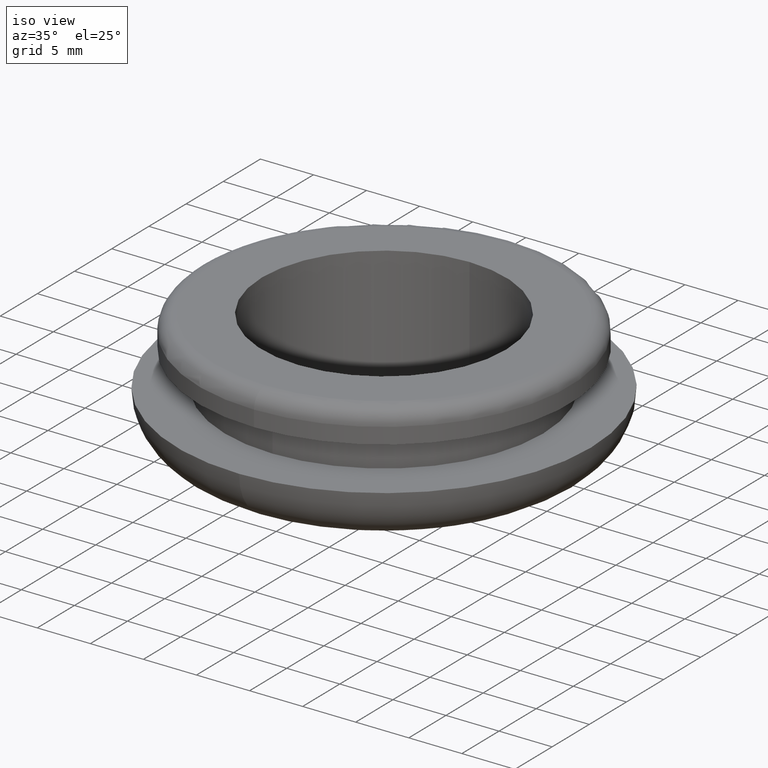
[diagram: clean part render]
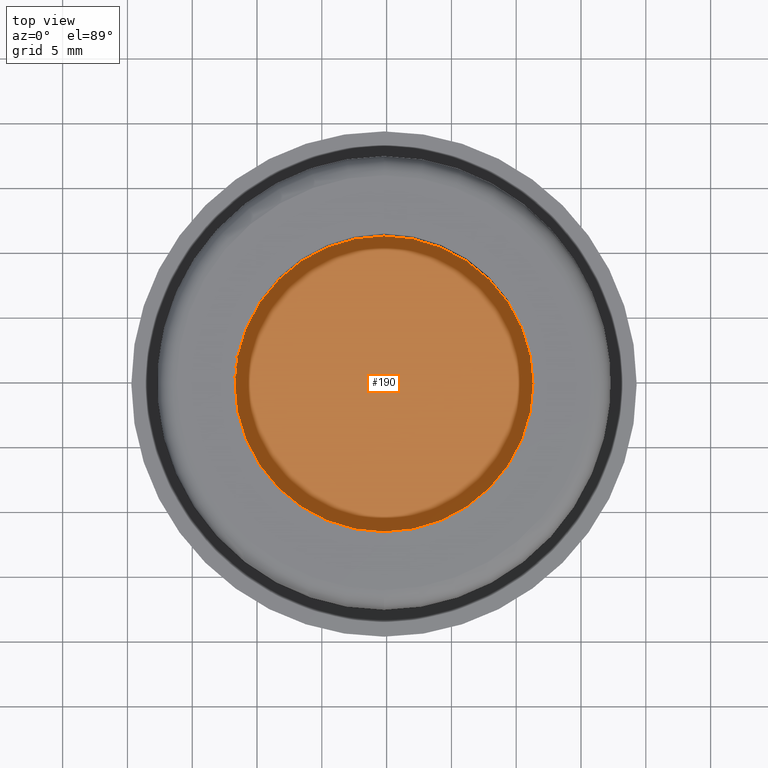
[diagram: tour spotlight — one face highlighted and labeled with its STEP entity id]
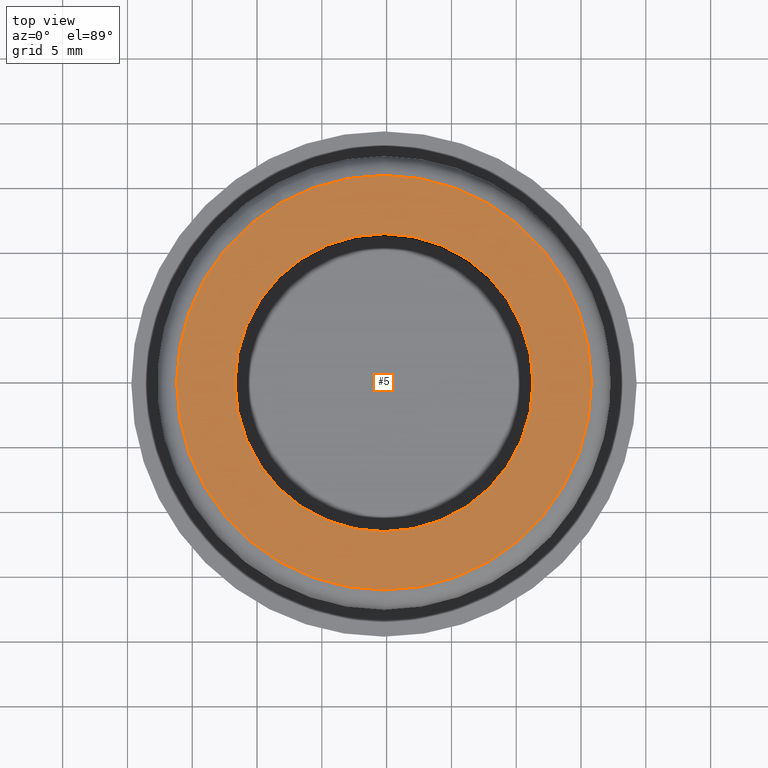
[diagram: tour spotlight — one face highlighted and labeled with its STEP entity id]
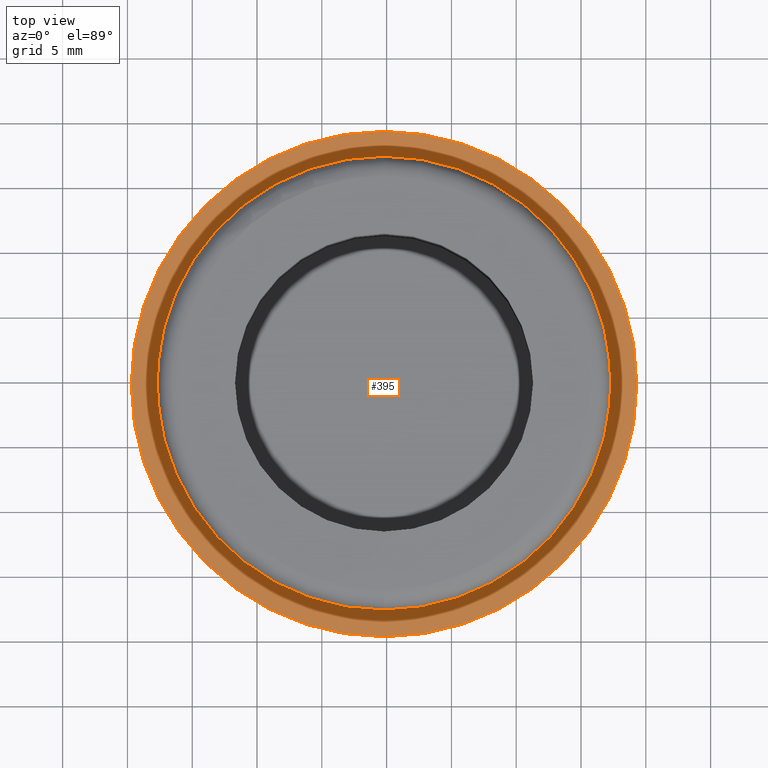
[diagram: tour spotlight — one face highlighted and labeled with its STEP entity id]
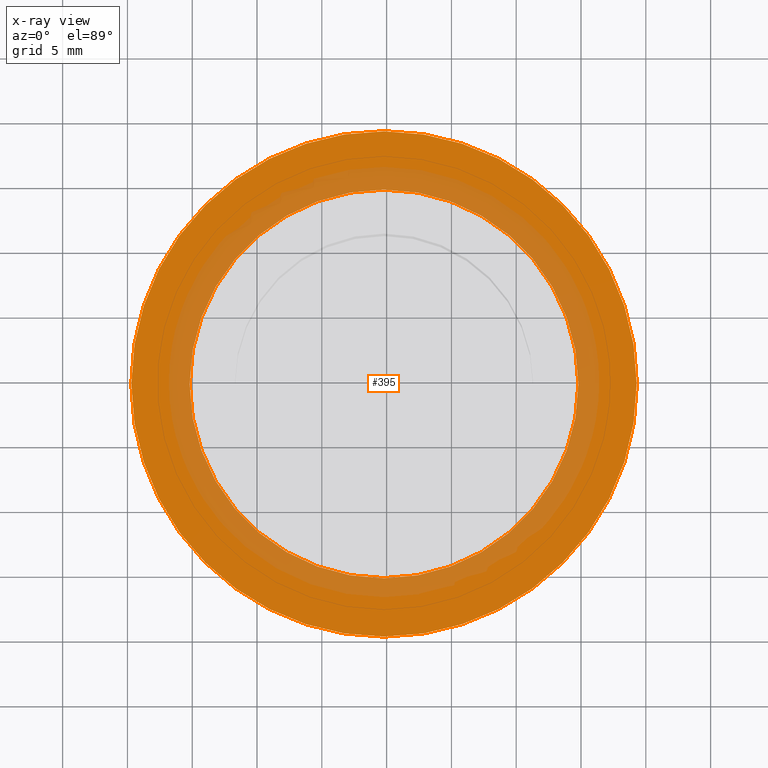
[diagram: x-ray of the same camera — body ghosted, this tour face saturated]
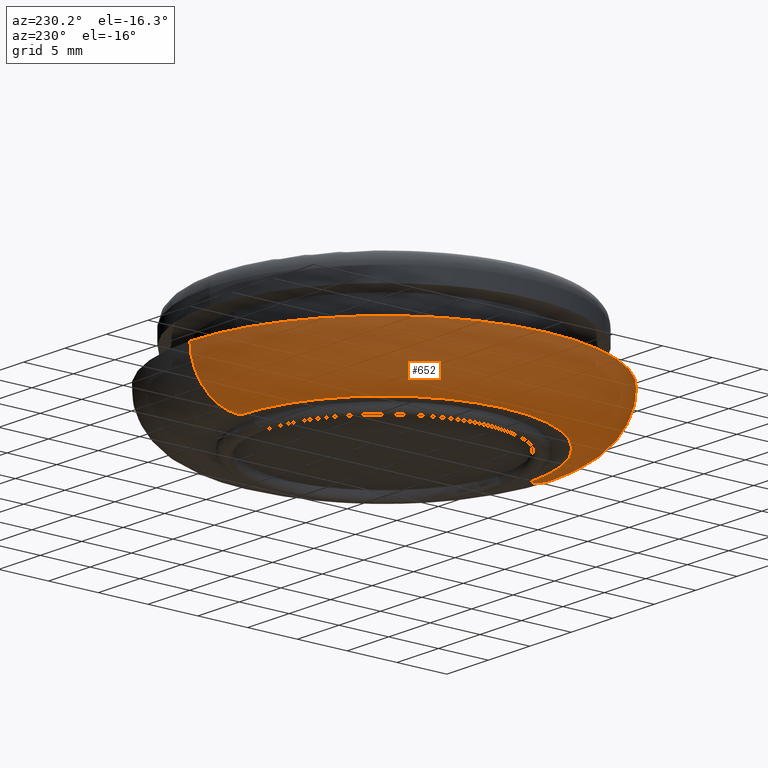
[diagram: tour spotlight — one face highlighted and labeled with its STEP entity id]
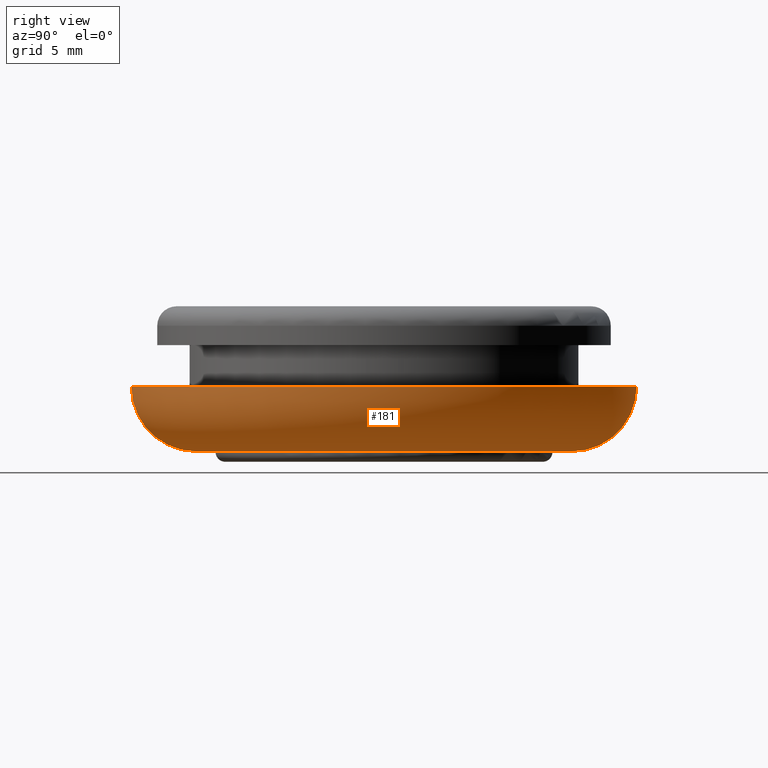
[diagram: tour spotlight — one face highlighted and labeled with its STEP entity id]
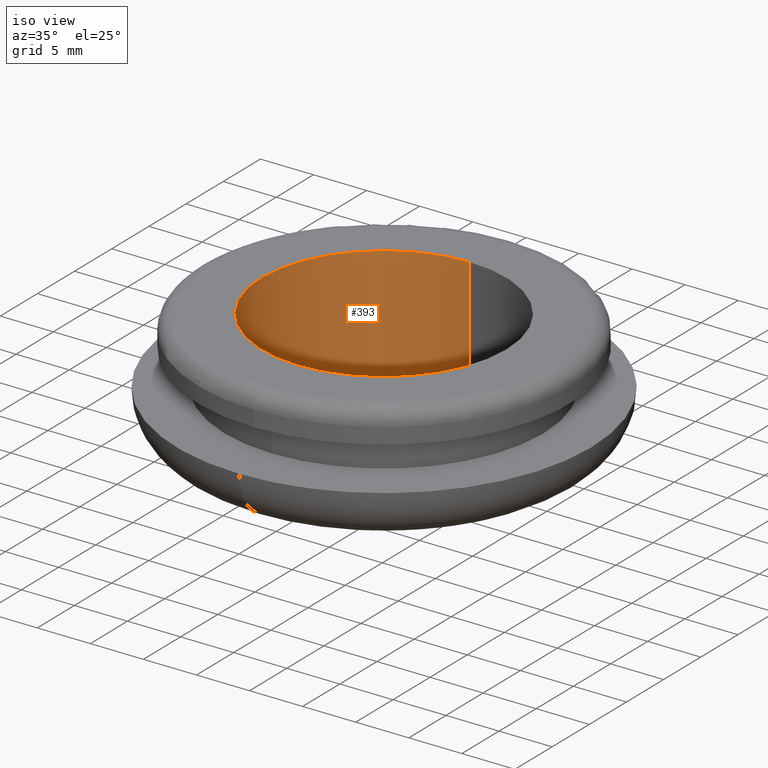
[diagram: tour spotlight — one face highlighted and labeled with its STEP entity id]
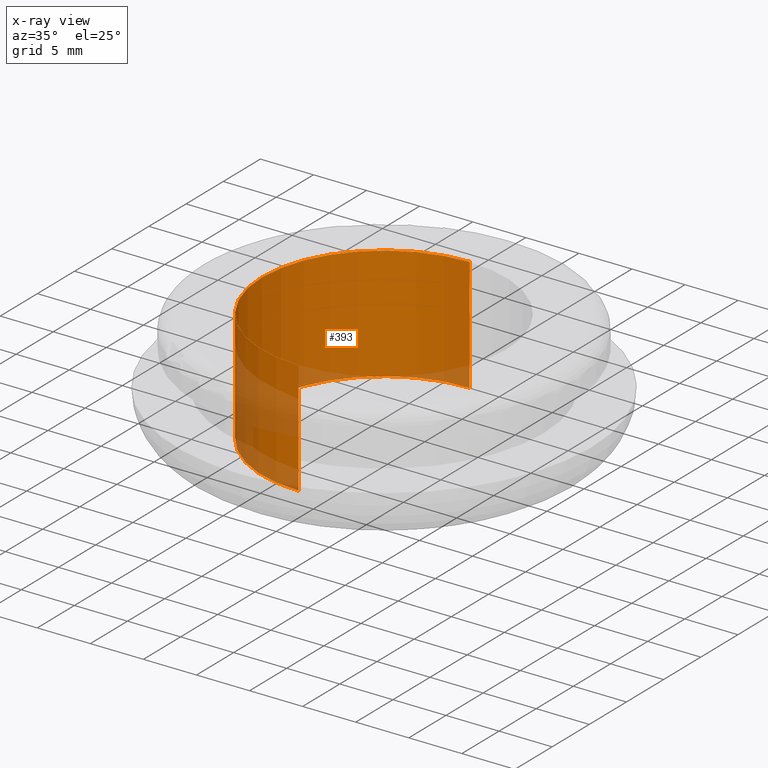
[diagram: x-ray of the same camera — body ghosted, this tour face saturated]
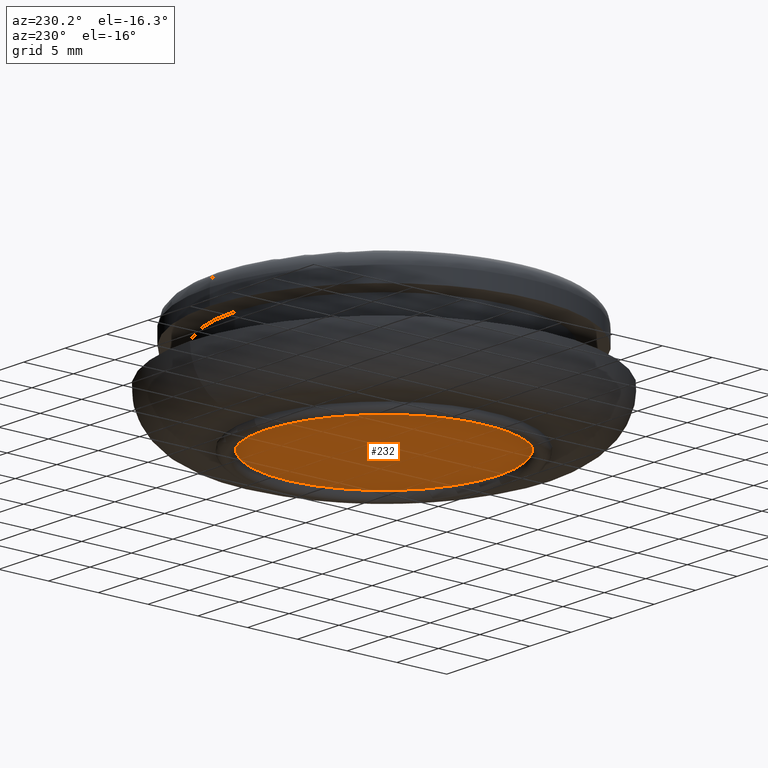
[diagram: tour spotlight — one face highlighted and labeled with its STEP entity id]
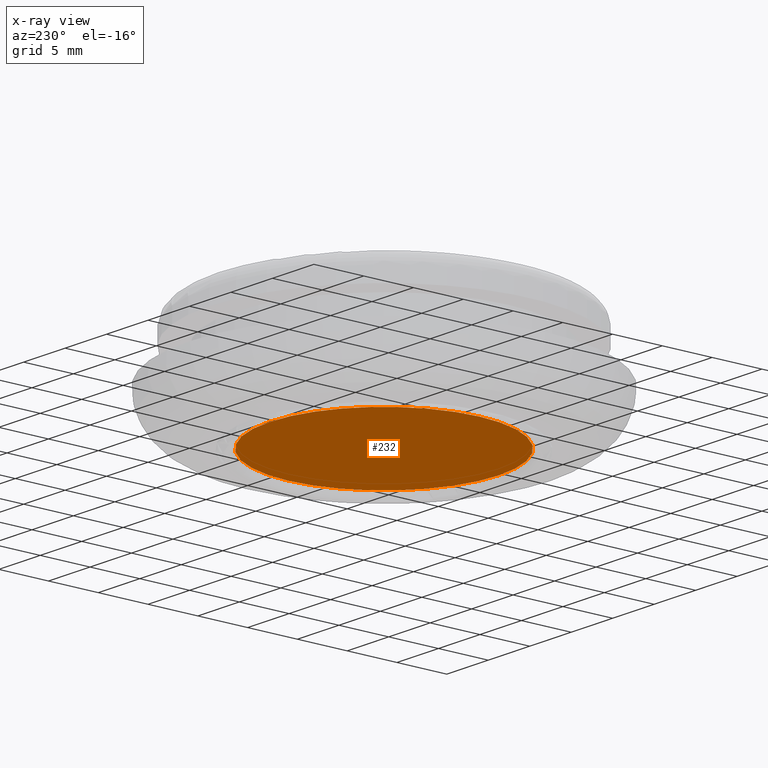
[diagram: x-ray of the same camera — body ghosted, this tour face saturated]
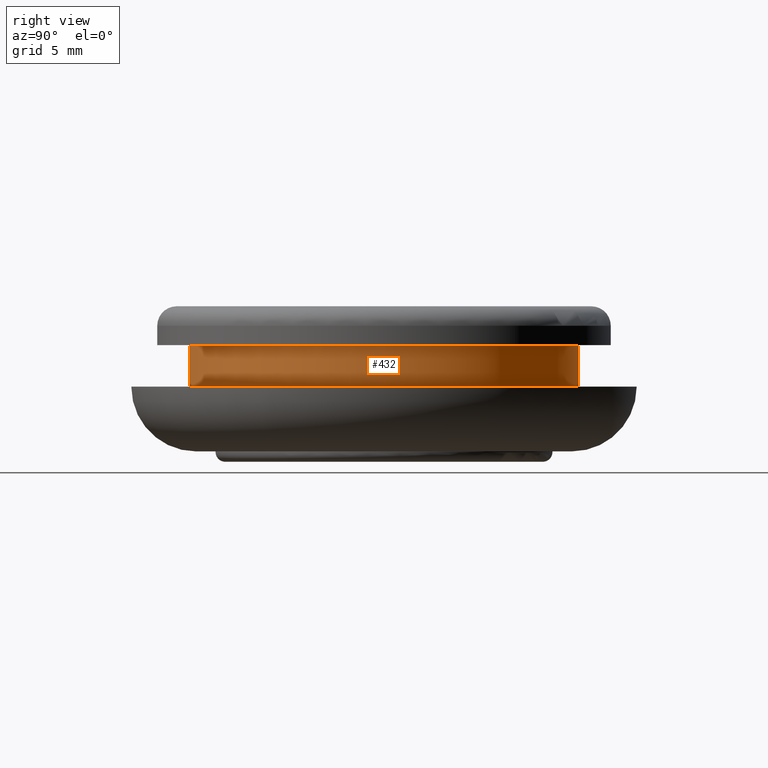
[diagram: tour spotlight — one face highlighted and labeled with its STEP entity id]
A machine part: a face-by-face anatomy tour. The part has 22 B-rep faces; the first image is the clean iso view, then the 8 largest visible faces are spotlighted one at a time (largest first), each with its STEP entity span.

Face 1 — top view, entity #190. In plain terms, the highlighted planar face has unit normal (0, -0, 1).
Definition (entity closure, byte-faithful):
#50 = PLANE ( 'NONE',  #197 ) ;
#72 = EDGE_CURVE ( 'NONE', #127, #500, #435, .T. ) ;
#83 = CARTESIAN_POINT ( 'NONE',  ( 0.0000000000000000000, 10.69999999999999900, -11.50000000000000000 ) ) ;
#85 = DIRECTION ( 'NONE',  ( 0.0000000000000000000, 0.0000000000000000000, -1.000000000000000000 ) ) ;
#95 = DIRECTION ( 'NONE',  ( 0.0000000000000000000, -1.000000000000000000, 0.0000000000000000000 ) ) ;
#104 = DIRECTION ( 'NONE',  ( 0.0000000000000000000, 0.0000000000000000000, -1.000000000000000000 ) ) ;
#108 = CARTESIAN_POINT ( 'NONE',  ( 1.408343819019456200E-015, 10.69999999999999900, 11.50000000000000000 ) ) ;
#127 = VERTEX_POINT ( 'NONE', #108 ) ;
#149 = CARTESIAN_POINT ( 'NONE',  ( 0.0000000000000000000, 10.69999999999999900, 0.0000000000000000000 ) ) ;
#190 = ADVANCED_FACE ( 'NONE', ( #358 ), #50, .T. ) ;
#197 = AXIS2_PLACEMENT_3D ( 'NONE', #372, #95, #560 ) ;
#204 = DIRECTION ( 'NONE',  ( 0.0000000000000000000, -1.000000000000000000, 0.0000000000000000000 ) ) ;
#220 = ORIENTED_EDGE ( 'NONE', *, *, #633, .T. ) ;
#256 = ORIENTED_EDGE ( 'NONE', *, *, #72, .T. ) ;
#303 = CIRCLE ( 'NONE', #538, 11.50000000000000000 ) ;
#347 = AXIS2_PLACEMENT_3D ( 'NONE', #477, #539, #85 ) ;
#358 = FACE_OUTER_BOUND ( 'NONE', #592, .T. ) ;
#372 = CARTESIAN_POINT ( 'NONE',  ( 0.0000000000000000000, 10.69999999999999900, 0.0000000000000000000 ) ) ;
#435 = CIRCLE ( 'NONE', #347, 11.50000000000000000 ) ;
#477 = CARTESIAN_POINT ( 'NONE',  ( 0.0000000000000000000, 10.69999999999999900, 0.0000000000000000000 ) ) ;
#500 = VERTEX_POINT ( 'NONE', #83 ) ;
#538 = AXIS2_PLACEMENT_3D ( 'NONE', #149, #204, #104 ) ;
#539 = DIRECTION ( 'NONE',  ( 0.0000000000000000000, -1.000000000000000000, 0.0000000000000000000 ) ) ;
#560 = DIRECTION ( 'NONE',  ( 0.0000000000000000000, -0.0000000000000000000, -1.000000000000000000 ) ) ;
#592 = EDGE_LOOP ( 'NONE', ( #220, #256 ) ) ;
#633 = EDGE_CURVE ( 'NONE', #500, #127, #303, .T. ) ;

Face 2 — top view, entity #5. In plain terms, the highlighted planar face has unit normal (0, -0, 1).
Definition (entity closure, byte-faithful):
#5 = ADVANCED_FACE ( 'NONE', ( #280, #88 ), #552, .T. ) ;
#19 = EDGE_CURVE ( 'NONE', #353, #331, #603, .T. ) ;
#46 = EDGE_CURVE ( 'NONE', #596, #531, #572, .T. ) ;
#79 = AXIS2_PLACEMENT_3D ( 'NONE', #194, #166, #292 ) ;
#88 = FACE_BOUND ( 'NONE', #265, .T. ) ;
#113 = ORIENTED_EDGE ( 'NONE', *, *, #46, .F. ) ;
#132 = CARTESIAN_POINT ( 'NONE',  ( 1.408343819019456200E-015, -1.734723475976807100E-015, 11.50000000000000000 ) ) ;
#154 = AXIS2_PLACEMENT_3D ( 'NONE', #561, #621, #555 ) ;
#166 = DIRECTION ( 'NONE',  ( 0.0000000000000000000, -1.000000000000000000, 0.0000000000000000000 ) ) ;
#167 = ORIENTED_EDGE ( 'NONE', *, *, #19, .T. ) ;
#173 = CARTESIAN_POINT ( 'NONE',  ( 2.051283388571816100E-015, -3.469446951953614200E-015, 15.99999999999998900 ) ) ;
#180 = ORIENTED_EDGE ( 'NONE', *, *, #330, .F. ) ;
#194 = CARTESIAN_POINT ( 'NONE',  ( 0.0000000000000000000, -1.734723475976807100E-015, 0.0000000000000000000 ) ) ;
#209 = AXIS2_PLACEMENT_3D ( 'NONE', #583, #236, #362 ) ;
#225 = CARTESIAN_POINT ( 'NONE',  ( 11.50000000000000000, -2.573917133304267300E-015, 0.0000000000000000000 ) ) ;
#236 = DIRECTION ( 'NONE',  ( 0.0000000000000000000, -1.000000000000000000, 0.0000000000000000000 ) ) ;
#247 = CIRCLE ( 'NONE', #154, 15.99999999999998900 ) ;
#265 = EDGE_LOOP ( 'NONE', ( #113, #180 ) ) ;
#280 = FACE_OUTER_BOUND ( 'NONE', #547, .T. ) ;
#292 = DIRECTION ( 'NONE',  ( 0.0000000000000000000, 0.0000000000000000000, -1.000000000000000000 ) ) ;
#330 = EDGE_CURVE ( 'NONE', #531, #596, #497, .T. ) ;
#331 = VERTEX_POINT ( 'NONE', #389 ) ;
#353 = VERTEX_POINT ( 'NONE', #173 ) ;
#361 = EDGE_CURVE ( 'NONE', #331, #353, #247, .T. ) ;
#362 = DIRECTION ( 'NONE',  ( 0.0000000000000000000, 0.0000000000000000000, -1.000000000000000000 ) ) ;
#389 = CARTESIAN_POINT ( 'NONE',  ( 0.0000000000000000000, -3.469446951953614200E-015, -15.99999999999998900 ) ) ;
#422 = DIRECTION ( 'NONE',  ( 0.0000000000000000000, -1.000000000000000000, 0.0000000000000000000 ) ) ;
#439 = DIRECTION ( 'NONE',  ( 0.0000000000000000000, -0.0000000000000000000, -1.000000000000000000 ) ) ;
#497 = CIRCLE ( 'NONE', #79, 11.50000000000000000 ) ;
#510 = ORIENTED_EDGE ( 'NONE', *, *, #361, .T. ) ;
#513 = AXIS2_PLACEMENT_3D ( 'NONE', #225, #422, #439 ) ;
#531 = VERTEX_POINT ( 'NONE', #132 ) ;
#547 = EDGE_LOOP ( 'NONE', ( #510, #167 ) ) ;
#552 = PLANE ( 'NONE',  #513 ) ;
#555 = DIRECTION ( 'NONE',  ( 0.0000000000000000000, 0.0000000000000000000, -1.000000000000000000 ) ) ;
#561 = CARTESIAN_POINT ( 'NONE',  ( 0.0000000000000000000, -3.469446951953614200E-015, 0.0000000000000000000 ) ) ;
#572 = CIRCLE ( 'NONE', #209, 11.50000000000000000 ) ;
#580 = DIRECTION ( 'NONE',  ( 0.0000000000000000000, 0.0000000000000000000, -1.000000000000000000 ) ) ;
#581 = AXIS2_PLACEMENT_3D ( 'NONE', #593, #623, #580 ) ;
#583 = CARTESIAN_POINT ( 'NONE',  ( 0.0000000000000000000, -1.734723475976807100E-015, 0.0000000000000000000 ) ) ;
#593 = CARTESIAN_POINT ( 'NONE',  ( 0.0000000000000000000, -3.469446951953614200E-015, 0.0000000000000000000 ) ) ;
#596 = VERTEX_POINT ( 'NONE', #616 ) ;
#603 = CIRCLE ( 'NONE', #581, 15.99999999999998900 ) ;
#616 = CARTESIAN_POINT ( 'NONE',  ( 0.0000000000000000000, -1.734723475976807100E-015, -11.50000000000000000 ) ) ;
#621 = DIRECTION ( 'NONE',  ( 0.0000000000000000000, -1.000000000000000000, 0.0000000000000000000 ) ) ;
#623 = DIRECTION ( 'NONE',  ( 0.0000000000000000000, -1.000000000000000000, 0.0000000000000000000 ) ) ;

Face 3 — top view, entity #395. An x-ray twin of the same camera follows (body ghosted, this face saturated) — the face is partly hidden behind the body. In plain terms, the highlighted planar face has unit normal (0, -0, 1).
Definition (entity closure, byte-faithful):
#3 = AXIS2_PLACEMENT_3D ( 'NONE', #133, #425, #193 ) ;
#14 = EDGE_CURVE ( 'NONE', #172, #536, #213, .T. ) ;
#48 = PLANE ( 'NONE',  #356 ) ;
#124 = DIRECTION ( 'NONE',  ( 0.0000000000000000000, -1.000000000000000000, 0.0000000000000000000 ) ) ;
#133 = CARTESIAN_POINT ( 'NONE',  ( 0.0000000000000000000, 6.200000000000000200, 0.0000000000000000000 ) ) ;
#151 = DIRECTION ( 'NONE',  ( 0.0000000000000000000, 0.0000000000000000000, -1.000000000000000000 ) ) ;
#172 = VERTEX_POINT ( 'NONE', #354 ) ;
#193 = DIRECTION ( 'NONE',  ( 0.0000000000000000000, 0.0000000000000000000, -1.000000000000000000 ) ) ;
#213 = CIRCLE ( 'NONE', #484, 15.00000000000000000 ) ;
#216 = ORIENTED_EDGE ( 'NONE', *, *, #290, .T. ) ;
#277 = DIRECTION ( 'NONE',  ( 0.0000000000000000000, -0.0000000000000000000, -1.000000000000000000 ) ) ;
#278 = CIRCLE ( 'NONE', #518, 19.50000000000000000 ) ;
#290 = EDGE_CURVE ( 'NONE', #457, #379, #278, .T. ) ;
#295 = CARTESIAN_POINT ( 'NONE',  ( 15.00000000000000000, 6.200000000000000200, 0.0000000000000000000 ) ) ;
#306 = DIRECTION ( 'NONE',  ( 0.0000000000000000000, 0.0000000000000000000, -1.000000000000000000 ) ) ;
#309 = CARTESIAN_POINT ( 'NONE',  ( 0.0000000000000000000, 6.200000000000000200, -19.50000000000000000 ) ) ;
#320 = EDGE_CURVE ( 'NONE', #379, #457, #527, .T. ) ;
#345 = CARTESIAN_POINT ( 'NONE',  ( 1.836970198721029600E-015, 6.200000000000000200, 15.00000000000000000 ) ) ;
#346 = DIRECTION ( 'NONE',  ( 0.0000000000000000000, -1.000000000000000000, 0.0000000000000000000 ) ) ;
#348 = CARTESIAN_POINT ( 'NONE',  ( 0.0000000000000000000, 6.200000000000000200, 0.0000000000000000000 ) ) ;
#354 = CARTESIAN_POINT ( 'NONE',  ( 0.0000000000000000000, 6.200000000000000200, -15.00000000000000000 ) ) ;
#356 = AXIS2_PLACEMENT_3D ( 'NONE', #295, #574, #277 ) ;
#369 = EDGE_LOOP ( 'NONE', ( #498, #216 ) ) ;
#379 = VERTEX_POINT ( 'NONE', #309 ) ;
#395 = ADVANCED_FACE ( 'NONE', ( #485, #471 ), #48, .T. ) ;
#397 = AXIS2_PLACEMENT_3D ( 'NONE', #644, #614, #151 ) ;
#425 = DIRECTION ( 'NONE',  ( 0.0000000000000000000, -1.000000000000000000, 0.0000000000000000000 ) ) ;
#443 = DIRECTION ( 'NONE',  ( 0.0000000000000000000, 0.0000000000000000000, -1.000000000000000000 ) ) ;
#447 = CIRCLE ( 'NONE', #397, 15.00000000000000000 ) ;
#457 = VERTEX_POINT ( 'NONE', #624 ) ;
#471 = FACE_BOUND ( 'NONE', #529, .T. ) ;
#484 = AXIS2_PLACEMENT_3D ( 'NONE', #491, #124, #443 ) ;
#485 = FACE_OUTER_BOUND ( 'NONE', #369, .T. ) ;
#491 = CARTESIAN_POINT ( 'NONE',  ( 0.0000000000000000000, 6.200000000000000200, 0.0000000000000000000 ) ) ;
#498 = ORIENTED_EDGE ( 'NONE', *, *, #320, .T. ) ;
#518 = AXIS2_PLACEMENT_3D ( 'NONE', #348, #346, #306 ) ;
#523 = EDGE_CURVE ( 'NONE', #536, #172, #447, .T. ) ;
#527 = CIRCLE ( 'NONE', #3, 19.50000000000000000 ) ;
#529 = EDGE_LOOP ( 'NONE', ( #611, #530 ) ) ;
#530 = ORIENTED_EDGE ( 'NONE', *, *, #523, .F. ) ;
#536 = VERTEX_POINT ( 'NONE', #345 ) ;
#574 = DIRECTION ( 'NONE',  ( 0.0000000000000000000, -1.000000000000000000, 0.0000000000000000000 ) ) ;
#611 = ORIENTED_EDGE ( 'NONE', *, *, #14, .F. ) ;
#614 = DIRECTION ( 'NONE',  ( 0.0000000000000000000, -1.000000000000000000, 0.0000000000000000000 ) ) ;
#624 = CARTESIAN_POINT ( 'NONE',  ( 2.388061258337338900E-015, 6.200000000000000200, 19.50000000000000000 ) ) ;
#644 = CARTESIAN_POINT ( 'NONE',  ( 0.0000000000000000000, 6.200000000000000200, 0.0000000000000000000 ) ) ;

Face 4 — auxiliary view, entity #652. In plain terms, the highlighted toroidal blend (fillet) surface has major radius 14.5 mm and minor (blend) radius 5 mm.
Definition (entity closure, byte-faithful):
#12 = CARTESIAN_POINT ( 'NONE',  ( 0.0000000000000000000, 11.19999999999999800, -14.50000000000000000 ) ) ;
#41 = TOROIDAL_SURFACE ( 'NONE', #612, 14.50000000000000000, 4.999999999999999100 ) ;
#76 = CARTESIAN_POINT ( 'NONE',  ( 1.775737858763662000E-015, 6.200000000000000200, 14.50000000000000000 ) ) ;
#98 = EDGE_CURVE ( 'NONE', #430, #548, #288, .T. ) ;
#112 = CARTESIAN_POINT ( 'NONE',  ( 0.0000000000000000000, 6.200000000000000200, -14.50000000000000000 ) ) ;
#125 = DIRECTION ( 'NONE',  ( 0.0000000000000000000, -1.000000000000000000, 0.0000000000000000000 ) ) ;
#129 = CARTESIAN_POINT ( 'NONE',  ( 2.081899558550500300E-015, 11.19999999999999800, 14.50000000000000000 ) ) ;
#135 = ORIENTED_EDGE ( 'NONE', *, *, #290, .F. ) ;
#140 = DIRECTION ( 'NONE',  ( 0.0000000000000000000, 0.0000000000000000000, -1.000000000000000000 ) ) ;
#163 = ORIENTED_EDGE ( 'NONE', *, *, #98, .T. ) ;
#184 = FACE_OUTER_BOUND ( 'NONE', #228, .T. ) ;
#219 = CIRCLE ( 'NONE', #459, 4.999999999999999100 ) ;
#228 = EDGE_LOOP ( 'NONE', ( #355, #163, #324, #135 ) ) ;
#258 = EDGE_CURVE ( 'NONE', #430, #457, #219, .T. ) ;
#266 = CARTESIAN_POINT ( 'NONE',  ( 0.0000000000000000000, 6.200000000000000200, 0.0000000000000000000 ) ) ;
#273 = DIRECTION ( 'NONE',  ( -1.000000000000000000, -0.0000000000000000000, -0.0000000000000000000 ) ) ;
#278 = CIRCLE ( 'NONE', #518, 19.50000000000000000 ) ;
#288 = CIRCLE ( 'NONE', #470, 14.50000000000000000 ) ;
#290 = EDGE_CURVE ( 'NONE', #457, #379, #278, .T. ) ;
#294 = EDGE_CURVE ( 'NONE', #548, #379, #542, .T. ) ;
#306 = DIRECTION ( 'NONE',  ( 0.0000000000000000000, 0.0000000000000000000, -1.000000000000000000 ) ) ;
#309 = CARTESIAN_POINT ( 'NONE',  ( 0.0000000000000000000, 6.200000000000000200, -19.50000000000000000 ) ) ;
#324 = ORIENTED_EDGE ( 'NONE', *, *, #294, .T. ) ;
#346 = DIRECTION ( 'NONE',  ( 0.0000000000000000000, -1.000000000000000000, 0.0000000000000000000 ) ) ;
#348 = CARTESIAN_POINT ( 'NONE',  ( 0.0000000000000000000, 6.200000000000000200, 0.0000000000000000000 ) ) ;
#355 = ORIENTED_EDGE ( 'NONE', *, *, #258, .F. ) ;
#379 = VERTEX_POINT ( 'NONE', #309 ) ;
#402 = DIRECTION ( 'NONE',  ( 1.000000000000000000, 0.0000000000000000000, -1.224646799147353200E-016 ) ) ;
#412 = DIRECTION ( 'NONE',  ( 0.0000000000000000000, 0.0000000000000000000, 1.000000000000000000 ) ) ;
#430 = VERTEX_POINT ( 'NONE', #129 ) ;
#453 = DIRECTION ( 'NONE',  ( 0.0000000000000000000, -1.000000000000000000, 0.0000000000000000000 ) ) ;
#457 = VERTEX_POINT ( 'NONE', #624 ) ;
#459 = AXIS2_PLACEMENT_3D ( 'NONE', #76, #402, #577 ) ;
#470 = AXIS2_PLACEMENT_3D ( 'NONE', #641, #453, #503 ) ;
#503 = DIRECTION ( 'NONE',  ( 0.0000000000000000000, 0.0000000000000000000, -1.000000000000000000 ) ) ;
#518 = AXIS2_PLACEMENT_3D ( 'NONE', #348, #346, #306 ) ;
#542 = CIRCLE ( 'NONE', #626, 4.999999999999999100 ) ;
#548 = VERTEX_POINT ( 'NONE', #12 ) ;
#577 = DIRECTION ( 'NONE',  ( -1.224646799147353000E-016, 0.0000000000000000000, -1.000000000000000000 ) ) ;
#612 = AXIS2_PLACEMENT_3D ( 'NONE', #266, #125, #140 ) ;
#624 = CARTESIAN_POINT ( 'NONE',  ( 2.388061258337338900E-015, 6.200000000000000200, 19.50000000000000000 ) ) ;
#626 = AXIS2_PLACEMENT_3D ( 'NONE', #112, #273, #412 ) ;
#641 = CARTESIAN_POINT ( 'NONE',  ( 0.0000000000000000000, 11.19999999999999800, 0.0000000000000000000 ) ) ;
#652 = ADVANCED_FACE ( 'NONE', ( #184 ), #41, .T. ) ;

Face 5 — right view, entity #181. In plain terms, the highlighted toroidal blend (fillet) surface has major radius 14.5 mm and minor (blend) radius 5 mm.
Definition (entity closure, byte-faithful):
#3 = AXIS2_PLACEMENT_3D ( 'NONE', #133, #425, #193 ) ;
#12 = CARTESIAN_POINT ( 'NONE',  ( 0.0000000000000000000, 11.19999999999999800, -14.50000000000000000 ) ) ;
#17 = ORIENTED_EDGE ( 'NONE', *, *, #294, .F. ) ;
#20 = AXIS2_PLACEMENT_3D ( 'NONE', #327, #370, #507 ) ;
#76 = CARTESIAN_POINT ( 'NONE',  ( 1.775737858763662000E-015, 6.200000000000000200, 14.50000000000000000 ) ) ;
#112 = CARTESIAN_POINT ( 'NONE',  ( 0.0000000000000000000, 6.200000000000000200, -14.50000000000000000 ) ) ;
#129 = CARTESIAN_POINT ( 'NONE',  ( 2.081899558550500300E-015, 11.19999999999999800, 14.50000000000000000 ) ) ;
#133 = CARTESIAN_POINT ( 'NONE',  ( 0.0000000000000000000, 6.200000000000000200, 0.0000000000000000000 ) ) ;
#146 = EDGE_CURVE ( 'NONE', #548, #430, #271, .T. ) ;
#181 = ADVANCED_FACE ( 'NONE', ( #255 ), #630, .T. ) ;
#193 = DIRECTION ( 'NONE',  ( 0.0000000000000000000, 0.0000000000000000000, -1.000000000000000000 ) ) ;
#207 = EDGE_LOOP ( 'NONE', ( #452, #505, #411, #17 ) ) ;
#219 = CIRCLE ( 'NONE', #459, 4.999999999999999100 ) ;
#255 = FACE_OUTER_BOUND ( 'NONE', #207, .T. ) ;
#258 = EDGE_CURVE ( 'NONE', #430, #457, #219, .T. ) ;
#271 = CIRCLE ( 'NONE', #640, 14.50000000000000000 ) ;
#273 = DIRECTION ( 'NONE',  ( -1.000000000000000000, -0.0000000000000000000, -0.0000000000000000000 ) ) ;
#294 = EDGE_CURVE ( 'NONE', #548, #379, #542, .T. ) ;
#309 = CARTESIAN_POINT ( 'NONE',  ( 0.0000000000000000000, 6.200000000000000200, -19.50000000000000000 ) ) ;
#320 = EDGE_CURVE ( 'NONE', #379, #457, #527, .T. ) ;
#327 = CARTESIAN_POINT ( 'NONE',  ( 0.0000000000000000000, 6.200000000000000200, 0.0000000000000000000 ) ) ;
#370 = DIRECTION ( 'NONE',  ( 0.0000000000000000000, -1.000000000000000000, 0.0000000000000000000 ) ) ;
#379 = VERTEX_POINT ( 'NONE', #309 ) ;
#402 = DIRECTION ( 'NONE',  ( 1.000000000000000000, 0.0000000000000000000, -1.224646799147353200E-016 ) ) ;
#411 = ORIENTED_EDGE ( 'NONE', *, *, #320, .F. ) ;
#412 = DIRECTION ( 'NONE',  ( 0.0000000000000000000, 0.0000000000000000000, 1.000000000000000000 ) ) ;
#421 = DIRECTION ( 'NONE',  ( 0.0000000000000000000, 0.0000000000000000000, -1.000000000000000000 ) ) ;
#425 = DIRECTION ( 'NONE',  ( 0.0000000000000000000, -1.000000000000000000, 0.0000000000000000000 ) ) ;
#430 = VERTEX_POINT ( 'NONE', #129 ) ;
#452 = ORIENTED_EDGE ( 'NONE', *, *, #146, .T. ) ;
#457 = VERTEX_POINT ( 'NONE', #624 ) ;
#459 = AXIS2_PLACEMENT_3D ( 'NONE', #76, #402, #577 ) ;
#505 = ORIENTED_EDGE ( 'NONE', *, *, #258, .T. ) ;
#506 = CARTESIAN_POINT ( 'NONE',  ( 0.0000000000000000000, 11.19999999999999800, 0.0000000000000000000 ) ) ;
#507 = DIRECTION ( 'NONE',  ( 0.0000000000000000000, 0.0000000000000000000, -1.000000000000000000 ) ) ;
#527 = CIRCLE ( 'NONE', #3, 19.50000000000000000 ) ;
#542 = CIRCLE ( 'NONE', #626, 4.999999999999999100 ) ;
#548 = VERTEX_POINT ( 'NONE', #12 ) ;
#554 = DIRECTION ( 'NONE',  ( 0.0000000000000000000, -1.000000000000000000, 0.0000000000000000000 ) ) ;
#577 = DIRECTION ( 'NONE',  ( -1.224646799147353000E-016, 0.0000000000000000000, -1.000000000000000000 ) ) ;
#624 = CARTESIAN_POINT ( 'NONE',  ( 2.388061258337338900E-015, 6.200000000000000200, 19.50000000000000000 ) ) ;
#626 = AXIS2_PLACEMENT_3D ( 'NONE', #112, #273, #412 ) ;
#630 = TOROIDAL_SURFACE ( 'NONE', #20, 14.50000000000000000, 4.999999999999999100 ) ;
#640 = AXIS2_PLACEMENT_3D ( 'NONE', #506, #554, #421 ) ;

Face 6 — iso view, entity #393. An x-ray twin of the same camera follows (body ghosted, this face saturated) — the face is partly hidden behind the body. In plain terms, the highlighted cylindrical surface (partial cylindrical patch) has radius 11.5 mm, axis along (0, -0, 1).
Definition (entity closure, byte-faithful):
#7 = EDGE_CURVE ( 'NONE', #127, #531, #227, .T. ) ;
#9 = EDGE_CURVE ( 'NONE', #500, #596, #121, .T. ) ;
#72 = EDGE_CURVE ( 'NONE', #127, #500, #435, .T. ) ;
#79 = AXIS2_PLACEMENT_3D ( 'NONE', #194, #166, #292 ) ;
#83 = CARTESIAN_POINT ( 'NONE',  ( 0.0000000000000000000, 10.69999999999999900, -11.50000000000000000 ) ) ;
#85 = DIRECTION ( 'NONE',  ( 0.0000000000000000000, 0.0000000000000000000, -1.000000000000000000 ) ) ;
#108 = CARTESIAN_POINT ( 'NONE',  ( 1.408343819019456200E-015, 10.69999999999999900, 11.50000000000000000 ) ) ;
#121 = LINE ( 'NONE', #318, #472 ) ;
#127 = VERTEX_POINT ( 'NONE', #108 ) ;
#132 = CARTESIAN_POINT ( 'NONE',  ( 1.408343819019456200E-015, -1.734723475976807100E-015, 11.50000000000000000 ) ) ;
#166 = DIRECTION ( 'NONE',  ( 0.0000000000000000000, -1.000000000000000000, 0.0000000000000000000 ) ) ;
#194 = CARTESIAN_POINT ( 'NONE',  ( 0.0000000000000000000, -1.734723475976807100E-015, 0.0000000000000000000 ) ) ;
#226 = FACE_OUTER_BOUND ( 'NONE', #400, .T. ) ;
#227 = LINE ( 'NONE', #251, #296 ) ;
#251 = CARTESIAN_POINT ( 'NONE',  ( 1.408343819019456200E-015, 12.69999999999999900, 11.50000000000000000 ) ) ;
#281 = ORIENTED_EDGE ( 'NONE', *, *, #72, .F. ) ;
#292 = DIRECTION ( 'NONE',  ( 0.0000000000000000000, 0.0000000000000000000, -1.000000000000000000 ) ) ;
#296 = VECTOR ( 'NONE', #468, 1000.000000000000000 ) ;
#318 = CARTESIAN_POINT ( 'NONE',  ( 0.0000000000000000000, 12.69999999999999900, -11.50000000000000000 ) ) ;
#329 = AXIS2_PLACEMENT_3D ( 'NONE', #598, #553, #550 ) ;
#330 = EDGE_CURVE ( 'NONE', #531, #596, #497, .T. ) ;
#347 = AXIS2_PLACEMENT_3D ( 'NONE', #477, #539, #85 ) ;
#393 = ADVANCED_FACE ( 'NONE', ( #226 ), #600, .F. ) ;
#400 = EDGE_LOOP ( 'NONE', ( #281, #419, #494, #605 ) ) ;
#419 = ORIENTED_EDGE ( 'NONE', *, *, #7, .T. ) ;
#435 = CIRCLE ( 'NONE', #347, 11.50000000000000000 ) ;
#468 = DIRECTION ( 'NONE',  ( 0.0000000000000000000, -1.000000000000000000, 0.0000000000000000000 ) ) ;
#472 = VECTOR ( 'NONE', #533, 1000.000000000000000 ) ;
#477 = CARTESIAN_POINT ( 'NONE',  ( 0.0000000000000000000, 10.69999999999999900, 0.0000000000000000000 ) ) ;
#494 = ORIENTED_EDGE ( 'NONE', *, *, #330, .T. ) ;
#497 = CIRCLE ( 'NONE', #79, 11.50000000000000000 ) ;
#500 = VERTEX_POINT ( 'NONE', #83 ) ;
#531 = VERTEX_POINT ( 'NONE', #132 ) ;
#533 = DIRECTION ( 'NONE',  ( 0.0000000000000000000, -1.000000000000000000, 0.0000000000000000000 ) ) ;
#539 = DIRECTION ( 'NONE',  ( 0.0000000000000000000, -1.000000000000000000, 0.0000000000000000000 ) ) ;
#550 = DIRECTION ( 'NONE',  ( 0.0000000000000000000, 0.0000000000000000000, -1.000000000000000000 ) ) ;
#553 = DIRECTION ( 'NONE',  ( 0.0000000000000000000, -1.000000000000000000, 0.0000000000000000000 ) ) ;
#596 = VERTEX_POINT ( 'NONE', #616 ) ;
#598 = CARTESIAN_POINT ( 'NONE',  ( 0.0000000000000000000, 12.69999999999999900, 0.0000000000000000000 ) ) ;
#600 = CYLINDRICAL_SURFACE ( 'NONE', #329, 11.50000000000000000 ) ;
#605 = ORIENTED_EDGE ( 'NONE', *, *, #9, .F. ) ;
#616 = CARTESIAN_POINT ( 'NONE',  ( 0.0000000000000000000, -1.734723475976807100E-015, -11.50000000000000000 ) ) ;

Face 7 — auxiliary view, entity #232. An x-ray twin of the same camera follows (body ghosted, this face saturated) — the face is partly hidden behind the body. In plain terms, the highlighted planar face has unit normal (0, 0, -1).
Definition (entity closure, byte-faithful):
#26 = EDGE_LOOP ( 'NONE', ( #153, #646 ) ) ;
#34 = FACE_OUTER_BOUND ( 'NONE', #26, .T. ) ;
#47 = PLANE ( 'NONE',  #434 ) ;
#78 = EDGE_CURVE ( 'NONE', #406, #460, #171, .T. ) ;
#91 = DIRECTION ( 'NONE',  ( 0.0000000000000000000, -1.000000000000000000, 0.0000000000000000000 ) ) ;
#134 = CIRCLE ( 'NONE', #570, 11.50000000000000000 ) ;
#142 = EDGE_CURVE ( 'NONE', #460, #406, #134, .T. ) ;
#153 = ORIENTED_EDGE ( 'NONE', *, *, #78, .F. ) ;
#171 = CIRCLE ( 'NONE', #386, 11.50000000000000000 ) ;
#232 = ADVANCED_FACE ( 'NONE', ( #34 ), #47, .T. ) ;
#257 = DIRECTION ( 'NONE',  ( 0.0000000000000000000, 0.0000000000000000000, -1.000000000000000000 ) ) ;
#269 = CARTESIAN_POINT ( 'NONE',  ( 1.408343819019456400E-015, 11.19999999999999900, 11.50000000000000000 ) ) ;
#299 = CARTESIAN_POINT ( 'NONE',  ( 0.0000000000000000000, 11.19999999999999900, 0.0000000000000000000 ) ) ;
#308 = CARTESIAN_POINT ( 'NONE',  ( 0.0000000000000000000, 11.19999999999999900, 0.0000000000000000000 ) ) ;
#367 = DIRECTION ( 'NONE',  ( -0.0000000000000000000, 1.000000000000000000, 0.0000000000000000000 ) ) ;
#386 = AXIS2_PLACEMENT_3D ( 'NONE', #299, #392, #257 ) ;
#392 = DIRECTION ( 'NONE',  ( 0.0000000000000000000, -1.000000000000000000, 0.0000000000000000000 ) ) ;
#406 = VERTEX_POINT ( 'NONE', #638 ) ;
#434 = AXIS2_PLACEMENT_3D ( 'NONE', #463, #367, #517 ) ;
#460 = VERTEX_POINT ( 'NONE', #269 ) ;
#463 = CARTESIAN_POINT ( 'NONE',  ( 11.50000000000000000, 11.19999999999999900, 0.0000000000000000000 ) ) ;
#517 = DIRECTION ( 'NONE',  ( 0.0000000000000000000, 0.0000000000000000000, 1.000000000000000000 ) ) ;
#570 = AXIS2_PLACEMENT_3D ( 'NONE', #308, #91, #613 ) ;
#613 = DIRECTION ( 'NONE',  ( 0.0000000000000000000, 0.0000000000000000000, -1.000000000000000000 ) ) ;
#638 = CARTESIAN_POINT ( 'NONE',  ( 0.0000000000000000000, 11.19999999999999900, -11.50000000000000000 ) ) ;
#646 = ORIENTED_EDGE ( 'NONE', *, *, #142, .F. ) ;

Face 8 — right view, entity #432. In plain terms, the highlighted cylindrical surface (partial cylindrical patch) has radius 15 mm, axis along (0, -0, 1).
Definition (entity closure, byte-faithful):
#14 = EDGE_CURVE ( 'NONE', #172, #536, #213, .T. ) ;
#56 = VERTEX_POINT ( 'NONE', #57 ) ;
#57 = CARTESIAN_POINT ( 'NONE',  ( 0.0000000000000000000, 2.999999999999999100, -15.00000000000000000 ) ) ;
#68 = VERTEX_POINT ( 'NONE', #461 ) ;
#87 = EDGE_CURVE ( 'NONE', #56, #68, #534, .T. ) ;
#102 = DIRECTION ( 'NONE',  ( 0.0000000000000000000, 0.0000000000000000000, -1.000000000000000000 ) ) ;
#124 = DIRECTION ( 'NONE',  ( 0.0000000000000000000, -1.000000000000000000, 0.0000000000000000000 ) ) ;
#156 = CARTESIAN_POINT ( 'NONE',  ( 0.0000000000000000000, 12.69999999999999900, 0.0000000000000000000 ) ) ;
#159 = CARTESIAN_POINT ( 'NONE',  ( 1.836970198721029600E-015, 12.69999999999999900, 15.00000000000000000 ) ) ;
#165 = DIRECTION ( 'NONE',  ( 0.0000000000000000000, -1.000000000000000000, 0.0000000000000000000 ) ) ;
#172 = VERTEX_POINT ( 'NONE', #354 ) ;
#176 = VECTOR ( 'NONE', #223, 1000.000000000000000 ) ;
#177 = EDGE_LOOP ( 'NONE', ( #317, #179, #417, #473 ) ) ;
#179 = ORIENTED_EDGE ( 'NONE', *, *, #464, .T. ) ;
#196 = LINE ( 'NONE', #159, #585 ) ;
#201 = DIRECTION ( 'NONE',  ( 0.0000000000000000000, 0.0000000000000000000, -1.000000000000000000 ) ) ;
#212 = FACE_OUTER_BOUND ( 'NONE', #177, .T. ) ;
#213 = CIRCLE ( 'NONE', #484, 15.00000000000000000 ) ;
#221 = EDGE_CURVE ( 'NONE', #172, #56, #312, .T. ) ;
#223 = DIRECTION ( 'NONE',  ( 0.0000000000000000000, -1.000000000000000000, 0.0000000000000000000 ) ) ;
#283 = DIRECTION ( 'NONE',  ( 0.0000000000000000000, -1.000000000000000000, 0.0000000000000000000 ) ) ;
#310 = DIRECTION ( 'NONE',  ( 0.0000000000000000000, -1.000000000000000000, 0.0000000000000000000 ) ) ;
#312 = LINE ( 'NONE', #352, #176 ) ;
#317 = ORIENTED_EDGE ( 'NONE', *, *, #14, .T. ) ;
#335 = CARTESIAN_POINT ( 'NONE',  ( 0.0000000000000000000, 2.999999999999999100, 0.0000000000000000000 ) ) ;
#345 = CARTESIAN_POINT ( 'NONE',  ( 1.836970198721029600E-015, 6.200000000000000200, 15.00000000000000000 ) ) ;
#352 = CARTESIAN_POINT ( 'NONE',  ( 0.0000000000000000000, 12.69999999999999900, -15.00000000000000000 ) ) ;
#354 = CARTESIAN_POINT ( 'NONE',  ( 0.0000000000000000000, 6.200000000000000200, -15.00000000000000000 ) ) ;
#417 = ORIENTED_EDGE ( 'NONE', *, *, #87, .F. ) ;
#427 = AXIS2_PLACEMENT_3D ( 'NONE', #156, #165, #102 ) ;
#432 = ADVANCED_FACE ( 'NONE', ( #212 ), #455, .T. ) ;
#443 = DIRECTION ( 'NONE',  ( 0.0000000000000000000, 0.0000000000000000000, -1.000000000000000000 ) ) ;
#445 = AXIS2_PLACEMENT_3D ( 'NONE', #335, #283, #201 ) ;
#455 = CYLINDRICAL_SURFACE ( 'NONE', #427, 15.00000000000000000 ) ;
#461 = CARTESIAN_POINT ( 'NONE',  ( 1.836970198721029600E-015, 2.999999999999999100, 15.00000000000000000 ) ) ;
#464 = EDGE_CURVE ( 'NONE', #536, #68, #196, .T. ) ;
#473 = ORIENTED_EDGE ( 'NONE', *, *, #221, .F. ) ;
#484 = AXIS2_PLACEMENT_3D ( 'NONE', #491, #124, #443 ) ;
#491 = CARTESIAN_POINT ( 'NONE',  ( 0.0000000000000000000, 6.200000000000000200, 0.0000000000000000000 ) ) ;
#534 = CIRCLE ( 'NONE', #445, 15.00000000000000000 ) ;
#536 = VERTEX_POINT ( 'NONE', #345 ) ;
#585 = VECTOR ( 'NONE', #310, 1000.000000000000000 ) ;